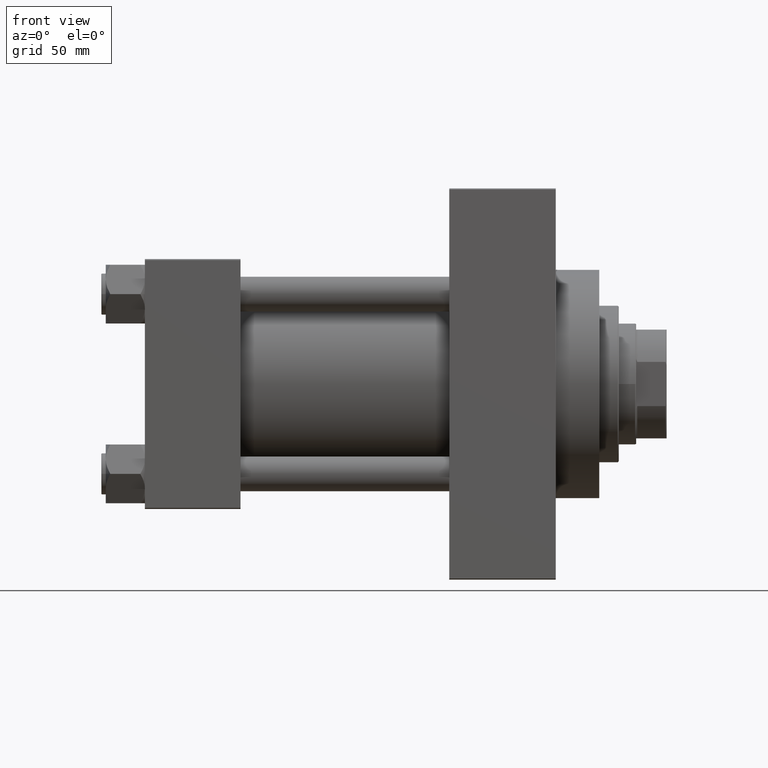
[diagram: clean part render]
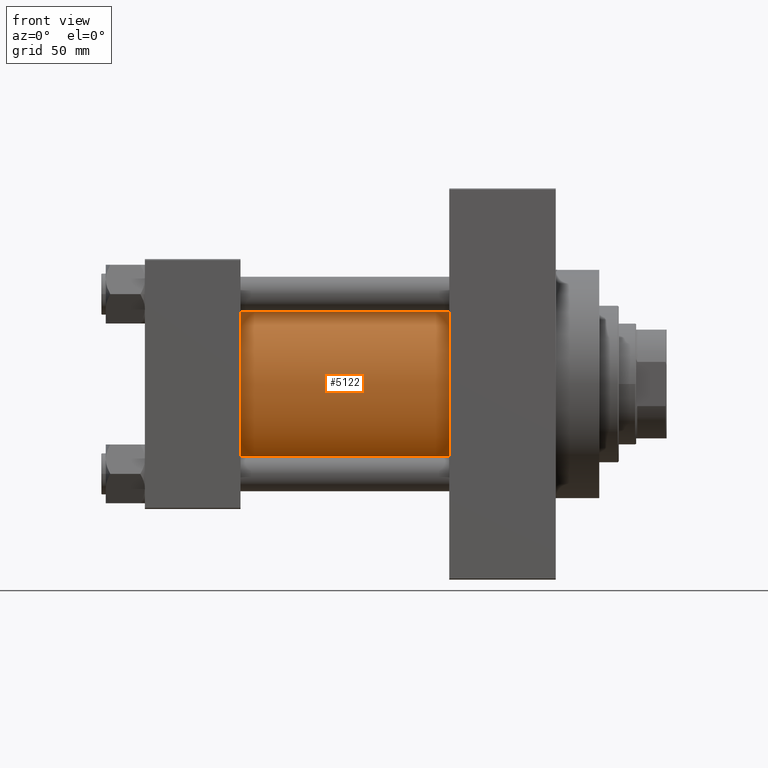
[diagram: same view with one face highlighted and labeled with its STEP entity id]
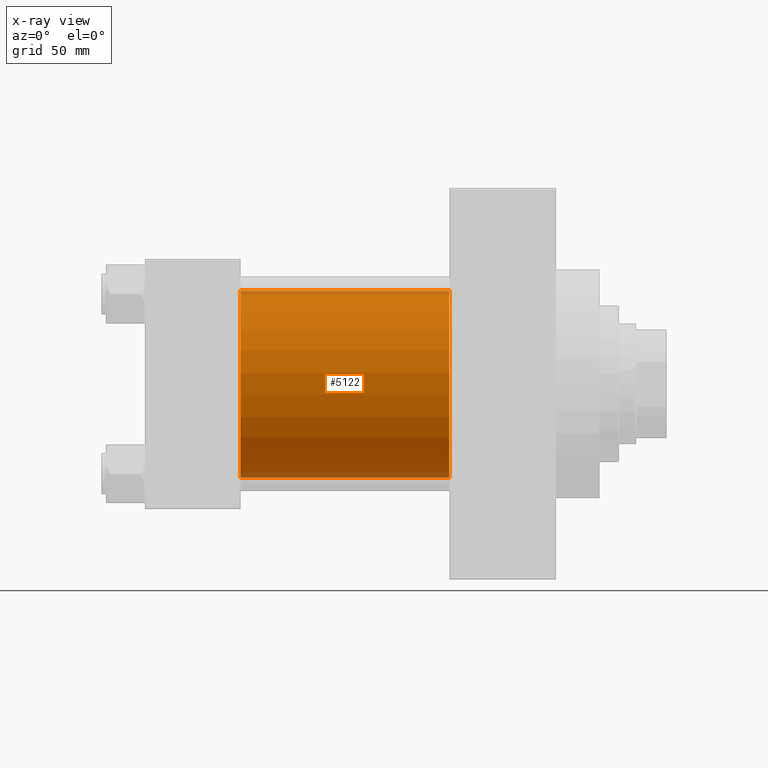
[diagram: x-ray of the same camera — body ghosted, the highlighted face saturated]
A machine part, front view. The second image highlights one B-rep face of the part: STEP entity #5122.
The next image is the same camera in x-ray: the body ghosted, the highlighted face saturated — about 5% of this face is hidden behind the body in this view.
In plain terms, the highlighted cylindrical surface (partial cylindrical patch) has radius 43 mm, axis along (-1, -0, -0).
Its self-contained STEP definition (entity closure, byte-faithful):
#2708 = LINE ( 'NONE', #6569, #31255 ) ;
#4022 = ORIENTED_EDGE ( 'NONE', *, *, #18860, .F. ) ;
#5024 = DIRECTION ( 'NONE',  ( -1.000000000000000000, -0.000000000000000000, -0.000000000000000000 ) ) ;
#5122 = ADVANCED_FACE ( 'NONE', ( #5260 ), #38308, .T. ) ;
#5260 = FACE_OUTER_BOUND ( 'NONE', #20805, .T. ) ;
#6154 = CARTESIAN_POINT ( 'NONE',  ( 44.00000000000000000, -2.602085213965210642E-15, 0.000000000000000000 ) ) ;
#6480 = DIRECTION ( 'NONE',  ( -1.000000000000000000, -0.000000000000000000, -0.000000000000000000 ) ) ;
#6569 = CARTESIAN_POINT ( 'NONE',  ( 140.0000000000000000, -2.602085213965210642E-15, 43.00000000000000000 ) ) ;
#8303 = AXIS2_PLACEMENT_3D ( 'NONE', #22219, #22930, #22691 ) ;
#12326 = EDGE_CURVE ( 'NONE', #27077, #37526, #2708, .T. ) ;
#14449 = LINE ( 'NONE', #40013, #26121 ) ;
#17447 = DIRECTION ( 'NONE',  ( -1.000000000000000000, -0.000000000000000000, -0.000000000000000000 ) ) ;
#18860 = EDGE_CURVE ( 'NONE', #39774, #40497, #14449, .T. ) ;
#20008 = DIRECTION ( 'NONE',  ( 0.000000000000000000, 0.000000000000000000, 1.000000000000000000 ) ) ;
#20805 = EDGE_LOOP ( 'NONE', ( #4022, #29443, #42507, #42890 ) ) ;
#21611 = DIRECTION ( 'NONE',  ( 0.000000000000000000, 0.000000000000000000, 1.000000000000000000 ) ) ;
#22219 = CARTESIAN_POINT ( 'NONE',  ( 140.0000000000000000, -2.602085213965210642E-15, 0.000000000000000000 ) ) ;
#22691 = DIRECTION ( 'NONE',  ( 0.000000000000000000, 0.000000000000000000, -1.000000000000000000 ) ) ;
#22930 = DIRECTION ( 'NONE',  ( 1.000000000000000000, 0.000000000000000000, 0.000000000000000000 ) ) ;
#26121 = VECTOR ( 'NONE', #6480, 1000.000000000000000 ) ;
#27077 = VERTEX_POINT ( 'NONE', #39136 ) ;
#27260 = CARTESIAN_POINT ( 'NONE',  ( 44.00000000000000000, -2.602085213965210642E-15, 43.00000000000000000 ) ) ;
#28358 = DIRECTION ( 'NONE',  ( 1.000000000000000000, -0.000000000000000000, 0.000000000000000000 ) ) ;
#29108 = CIRCLE ( 'NONE', #8303, 43.00000000000000000 ) ;
#29443 = ORIENTED_EDGE ( 'NONE', *, *, #38244, .F. ) ;
#31255 = VECTOR ( 'NONE', #17447, 1000.000000000000000 ) ;
#34923 = CARTESIAN_POINT ( 'NONE',  ( 140.0000000000000000, -2.602085213965210642E-15, 0.000000000000000000 ) ) ;
#35532 = AXIS2_PLACEMENT_3D ( 'NONE', #6154, #28358, #21611 ) ;
#36972 = CARTESIAN_POINT ( 'NONE',  ( 44.00000000000000000, 2.663896022368408223E-15, -43.00000000000000000 ) ) ;
#37526 = VERTEX_POINT ( 'NONE', #27260 ) ;
#38244 = EDGE_CURVE ( 'NONE', #27077, #39774, #29108, .T. ) ;
#38308 = CYLINDRICAL_SURFACE ( 'NONE', #46525, 43.00000000000000000 ) ;
#39136 = CARTESIAN_POINT ( 'NONE',  ( 140.0000000000000000, -2.602085213965210642E-15, 43.00000000000000000 ) ) ;
#39390 = CIRCLE ( 'NONE', #35532, 43.00000000000000000 ) ;
#39774 = VERTEX_POINT ( 'NONE', #46839 ) ;
#40013 = CARTESIAN_POINT ( 'NONE',  ( 140.0000000000000000, 2.663896022368408223E-15, -43.00000000000000000 ) ) ;
#40497 = VERTEX_POINT ( 'NONE', #36972 ) ;
#42507 = ORIENTED_EDGE ( 'NONE', *, *, #12326, .T. ) ;
#42890 = ORIENTED_EDGE ( 'NONE', *, *, #46280, .T. ) ;
#46280 = EDGE_CURVE ( 'NONE', #37526, #40497, #39390, .T. ) ;
#46525 = AXIS2_PLACEMENT_3D ( 'NONE', #34923, #5024, #20008 ) ;
#46839 = CARTESIAN_POINT ( 'NONE',  ( 140.0000000000000000, 2.663896022368408223E-15, -43.00000000000000000 ) ) ;